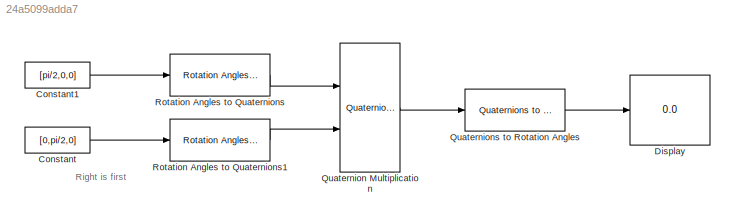
MODEL slx_24a5099adda7
KIND model
CONFIG AbsTol = auto
CONFIG EnableMultiTasking = off
CONFIG FixedStep = auto
CONFIG MaxStep = auto
CONFIG MinStep = auto
CONFIG RelTol = 1e-3
CONFIG SampleTimeConstraint = Unconstrained
CONFIG Solver = VariableStepAuto
CONFIG SolverName = VariableStepAuto
CONFIG StartTime = 0.0
CONFIG StopTime = 10.0
BLOCK [Constant] Constant
  Value = [0,pi/2,0]
BLOCK [Constant] Constant1
  Value = [pi/2,0,0]
BLOCK [Display] Display
  Decimation = 1
  Ports = [1]
BLOCK [Reference] Quaternion Multiplication  REF=aerolibutil/Quaternion
Multiplication
  Ports = [2, 1]
  SourceBlock = aerolibutil/Quaternion\nMultiplication
  SourceProductBaseCode = AE
  SourceType = Quaternion Multiplication
BLOCK [Reference] Quaternions to Rotation Angles  REF=sharedtransform/Quaternions to Rotation Angles
  AttributesFormatString = Rotation Order: %<rotationOrder>
  Ports = [1, 1]
  SourceBlock = sharedtransform/Quaternions to Rotation Angles
  SourceProductBaseCode = AE,PW,MT,VE,VP
  SourceType = Quat2Ang
BLOCK [Reference] Rotation Angles to Quaternions  REF=sharedtransform/Rotation Angles to Quaternions
  AttributesFormatString = Rotation Order: %<rotationOrder>
  Ports = [1, 1]
  SourceBlock = sharedtransform/Rotation Angles to Quaternions
  SourceProductBaseCode = AE,PW,MT,VE,VP
  SourceType = Ang2Quat
BLOCK [Reference] Rotation Angles to Quaternions1  REF=sharedtransform/Rotation Angles to Quaternions
  AttributesFormatString = Rotation Order: %<rotationOrder>
  Ports = [1, 1]
  SourceBlock = sharedtransform/Rotation Angles to Quaternions
  SourceProductBaseCode = AE,PW,MT,VE,VP
  SourceType = Ang2Quat
ANNOTATION (root): Right is first
LINE Constant1:1 -> Rotation Angles to Quaternions:1
LINE Constant:1 -> Rotation Angles to Quaternions1:1
LINE Quaternion Multiplication:1 -> Quaternions to Rotation Angles:1
LINE Quaternions to Rotation Angles:1 -> Display:1
LINE Rotation Angles to Quaternions1:1 -> Quaternion Multiplication:2
LINE Rotation Angles to Quaternions:1 -> Quaternion Multiplication:1
